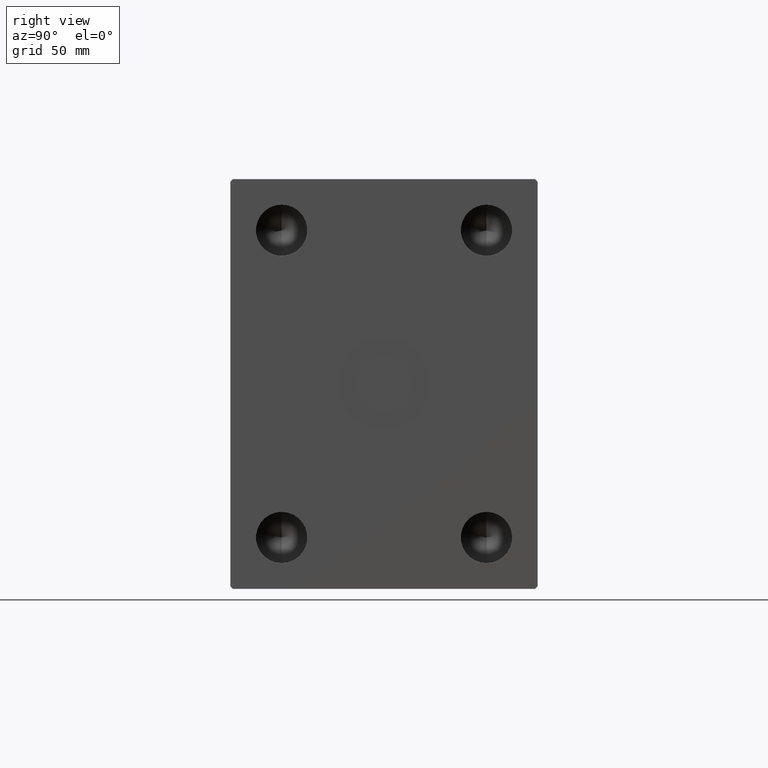
[diagram: clean part render]
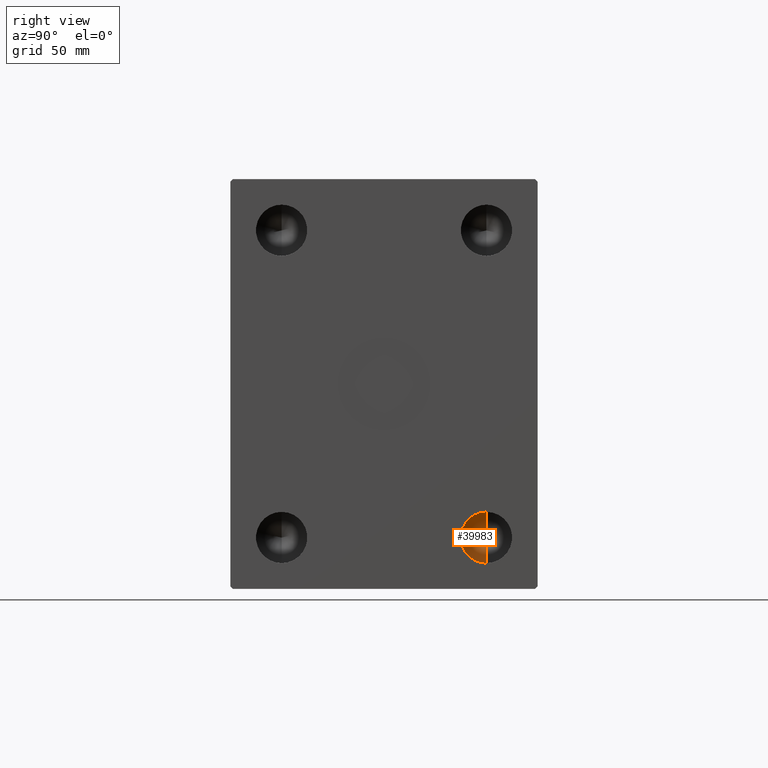
[diagram: same view with one face highlighted and labeled with its STEP entity id]
A machine part, right view. The second image highlights one B-rep face of the part: STEP entity #39983.
In plain terms, the highlighted conical surface has half-angle 59 deg.
Its self-contained STEP definition (entity closure, byte-faithful):
#242 = CARTESIAN_POINT ( 'NONE',  ( 167.3300000000000125, 40.00000000000000711, -69.99999999999998579 ) ) ;
#3773 = EDGE_CURVE ( 'NONE', #12504, #6721, #29412, .T. ) ;
#3903 = DIRECTION ( 'NONE',  ( 0.000000000000000000, 0.000000000000000000, -1.000000000000000000 ) ) ;
#4188 = CARTESIAN_POINT ( 'NONE',  ( 161.3213938097243840, 40.00000000000000000, -60.00000000000000000 ) ) ;
#4373 = EDGE_CURVE ( 'NONE', #7977, #12504, #40357, .T. ) ;
#6714 = LINE ( 'NONE', #37178, #11386 ) ;
#6721 = VERTEX_POINT ( 'NONE', #242 ) ;
#7977 = VERTEX_POINT ( 'NONE', #4188 ) ;
#8327 = ORIENTED_EDGE ( 'NONE', *, *, #4373, .T. ) ;
#11386 = VECTOR ( 'NONE', #27397, 1000.000000000000000 ) ;
#11851 = CARTESIAN_POINT ( 'NONE',  ( 167.3300000000000125, 40.00000000000000711, -60.00000000000000000 ) ) ;
#12504 = VERTEX_POINT ( 'NONE', #13965 ) ;
#13082 = VECTOR ( 'NONE', #43702, 1000.000000000000000 ) ;
#13965 = CARTESIAN_POINT ( 'NONE',  ( 167.3300000000000125, 40.00000000000000711, -50.00000000000000000 ) ) ;
#15183 = CONICAL_SURFACE ( 'NONE', #40043, 9.999999999999994671, 1.029744258676652091 ) ;
#23719 = EDGE_CURVE ( 'NONE', #7977, #6721, #6714, .T. ) ;
#24666 = ORIENTED_EDGE ( 'NONE', *, *, #23719, .F. ) ;
#26078 = CARTESIAN_POINT ( 'NONE',  ( 167.3300000000000125, 40.00000000000000711, -60.00000000000000000 ) ) ;
#26884 = ORIENTED_EDGE ( 'NONE', *, *, #3773, .T. ) ;
#27397 = DIRECTION ( 'NONE',  ( 0.5150380749100562650, 0.000000000000000000, -0.8571673007021111124 ) ) ;
#28760 = FACE_OUTER_BOUND ( 'NONE', #42078, .T. ) ;
#28766 = DIRECTION ( 'NONE',  ( 1.000000000000000000, -0.000000000000000000, -0.000000000000000000 ) ) ;
#29412 = CIRCLE ( 'NONE', #35102, 9.999999999999994671 ) ;
#33895 = CARTESIAN_POINT ( 'NONE',  ( 167.3300000000000125, 40.00000000000000711, -50.00000000000000000 ) ) ;
#34379 = DIRECTION ( 'NONE',  ( 1.000000000000000000, -0.000000000000000000, -0.000000000000000000 ) ) ;
#35102 = AXIS2_PLACEMENT_3D ( 'NONE', #26078, #28766, #42340 ) ;
#37178 = CARTESIAN_POINT ( 'NONE',  ( 167.3300000000000125, 40.00000000000000711, -69.99999999999998579 ) ) ;
#39983 = ADVANCED_FACE ( 'NONE', ( #28760 ), #15183, .F. ) ;
#40043 = AXIS2_PLACEMENT_3D ( 'NONE', #11851, #34379, #3903 ) ;
#40357 = LINE ( 'NONE', #33895, #13082 ) ;
#42078 = EDGE_LOOP ( 'NONE', ( #24666, #8327, #26884 ) ) ;
#42340 = DIRECTION ( 'NONE',  ( 0.000000000000000000, 0.000000000000000000, -1.000000000000000000 ) ) ;
#43702 = DIRECTION ( 'NONE',  ( 0.5150380749100562650, 1.049727191138617217E-16, 0.8571673007021111124 ) ) ;